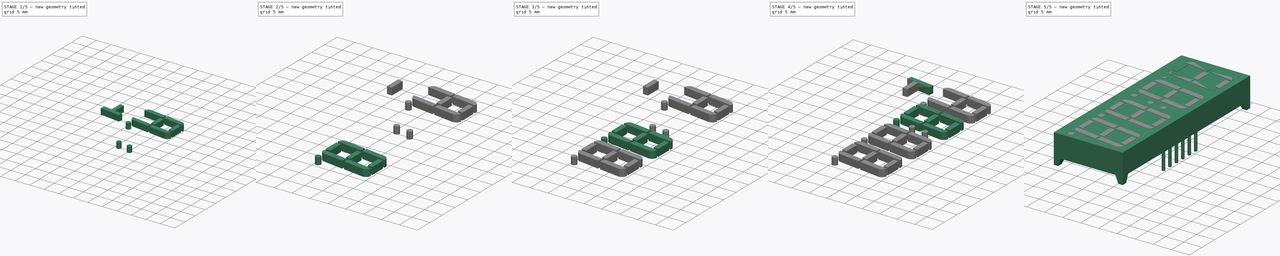
[diagram: build sequence overview — one tinted view per stage of 5, left to right]
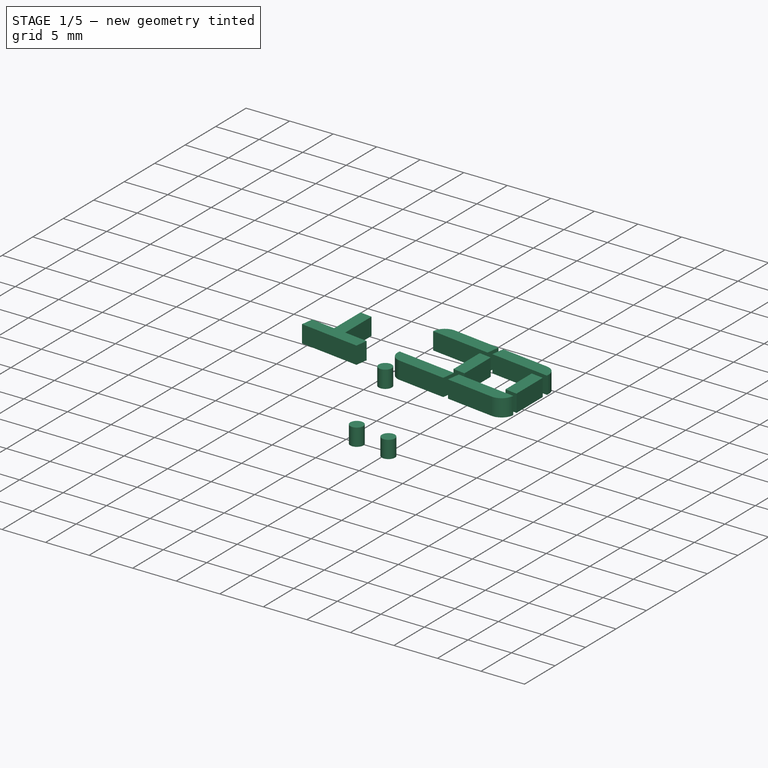
[diagram: stage 1 of 5 — iso view after this stage's code; geometry added in this stage tinted green]
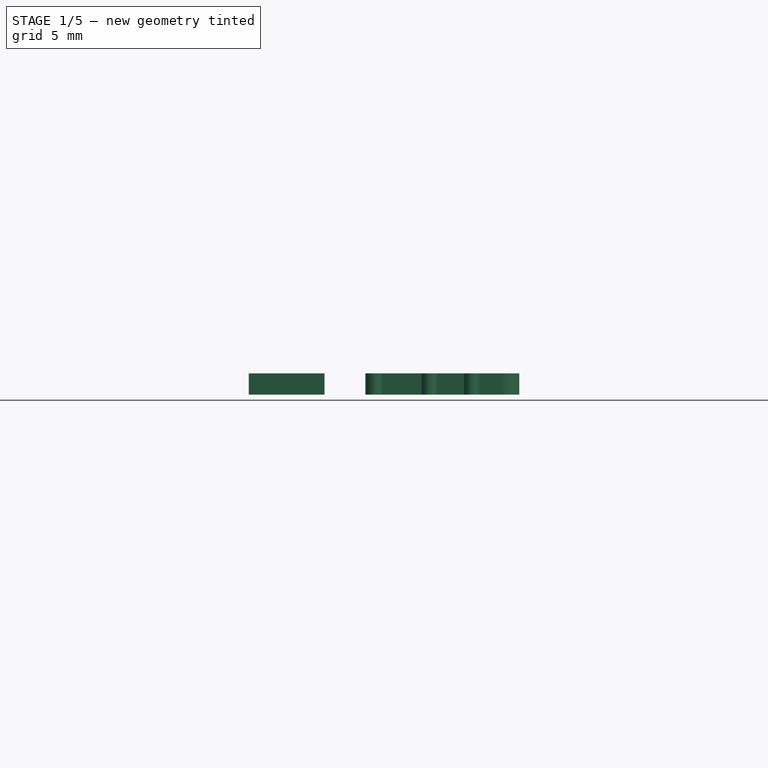
[diagram: stage 1 of 5 — front view after this stage's code; geometry added in this stage tinted green]
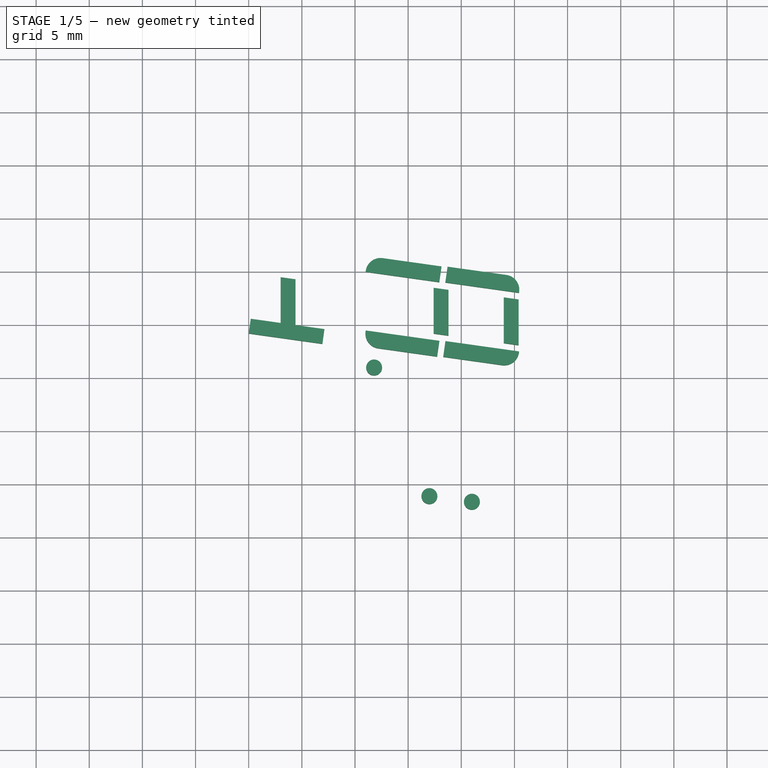
[diagram: stage 1 of 5 — top view after this stage's code; geometry added in this stage tinted green]
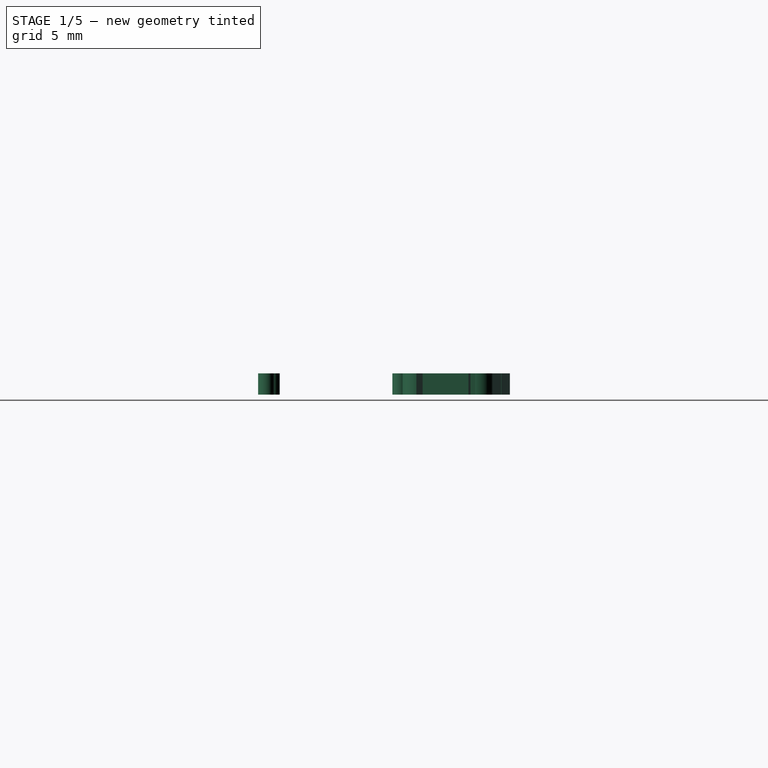
[diagram: stage 1 of 5 — right view after this stage's code; geometry added in this stage tinted green]
FCSTD DOCUMENT  (FreeCAD 0.17R11223 (Git))
Label: CA56-12XXXX_7
License: All rights reserved
LicenseURL: http://en.wikipedia.org/wiki/All_rights_reserved
objects: Part::Box×54, Part::Cut×26, Part::Cylinder×18, Part::Fillet×16, Part::Chamfer×4, Part::MultiFuse×4, App::DocumentObjectGroup×2, Sketcher::SketchObject×1, PartDesign::Pad×1, PartDesign::Body×1
note: 126 computed .brp shape members not serialized (recipe doc carries the construction recipe); baked Part::Feature solids carry a one-line shape summary decoded from their .brp

FEATURE [Part::Box] Box041  label="Kub041"
  AttacherType = Attacher::AttachEngine3D
  Height = 2
  Length = 7
  Placement = pos=(-0.2,8,6.2) rot=(0,0,-1;0.139626rad)
  Width = 1.5
FEATURE [Part::Box] Box042  label="Kub042"
  AttacherType = Attacher::AttachEngine3D
  Height = 2
  Length = 7
  Placement = pos=(8.8,7,6.2) rot=(0,0,-1;0.139626rad)
  Width = 1.5
FEATURE [Part::Box] Box043  label="Kub043"
  AttacherType = Attacher::AttachEngine3D
  Height = 2
  Length = 7
  Placement = pos=(9,14,6.2) rot=(0,0,-1;0.139626rad)
  Width = 1.5
FEATURE [Part::Box] Box044  label="Kub044"
  AttacherType = Attacher::AttachEngine3D
  Height = 2
  Length = 7
  Placement = pos=(0,15,6.2) rot=(0,0,-1;0.139626rad)
  Width = 1.5
FEATURE [Part::Box] Box045  label="Kub045"
  AttacherType = Attacher::AttachEngine3D
  Height = 2
  Length = 1.4
  Placement = pos=(-7,10,6.2) rot=(0,0,1;0rad)
  Width = 4.5
FEATURE [Part::Box] Box046  label="Kub046"
  AttacherType = Attacher::AttachEngine3D
  Height = 2
  Length = 7
  Placement = pos=(-9,14.78,6.2) rot=(0,0,-1;0.139626rad)
  Width = 1.4
FEATURE [Part::Box] Box047  label="Kub047"
  AttacherType = Attacher::AttachEngine3D
  Height = 2
  Length = 7
  Placement = pos=(-10,9.2,6.2) rot=(0,0,-1;0.139626rad)
  Width = 1.4
FEATURE [Part::Cut] Cut020
  Base = -> Box045
  Tool = -> Box046
FEATURE [Part::Box] Box048  label="Kub048"
  AttacherType = Attacher::AttachEngine3D
  Height = 2
  Length = 1.4
  Placement = pos=(-7,10,6.2) rot=(0,0,1;0rad)
  Width = 4.5
FEATURE [Part::Box] Box049  label="Kub049"
  AttacherType = Attacher::AttachEngine3D
  Height = 2
  Length = 7
  Placement = pos=(-9,14.78,6.2) rot=(0,0,-1;0.139626rad)
  Width = 1.4
FEATURE [Part::Box] Box050  label="Kub050"
  AttacherType = Attacher::AttachEngine3D
  Height = 2
  Length = 7
  Placement = pos=(-10,9.2,6.2) rot=(0,0,-1;0.139626rad)
  Width = 1.4
FEATURE [Part::Cut] Cut022
  Base = -> Box048
  Tool = -> Box049
FEATURE [Part::Cut] Cut023
  Base = -> Cut022
  Placement = pos=(14.4,-1,0) rot=(0,0,1;0rad)
  Tool = -> Box050
FEATURE [Part::Box] Box051  label="Kub051"
  AttacherType = Attacher::AttachEngine3D
  Height = 2
  Length = 1.4
  Placement = pos=(-7,10,6.2) rot=(0,0,1;0rad)
  Width = 4.5
FEATURE [Part::Box] Box052  label="Kub052"
  AttacherType = Attacher::AttachEngine3D
  Height = 2
  Length = 7
  Placement = pos=(-9,14.78,6.2) rot=(0,0,-1;0.139626rad)
  Width = 1.4
FEATURE [Part::Box] Box053  label="Kub053"
  AttacherType = Attacher::AttachEngine3D
  Height = 2
  Length = 7
  Placement = pos=(-10,9.2,6.2) rot=(0,0,-1;0.139626rad)
  Width = 1.4
FEATURE [Part::Cut] Cut024
  Base = -> Box051
  Tool = -> Box052
FEATURE [Part::Cut] Cut025
  Base = -> Cut024
  Placement = pos=(21,-1.9,0) rot=(0,0,1;0rad)
  Tool = -> Box053
FEATURE [Part::Fillet] Fillet012
  Base = -> Box041
  Edges = 1 edges r=1.4: [Edge1]
  Placement = pos=(1,0,0) rot=(0,0,1;0rad)
FEATURE [Part::Fillet] Fillet013
  Base = -> Box044
  Edges = 1 edges r=1.4: [Edge3]
  Placement = pos=(1,0,0) rot=(0,0,1;0rad)
FEATURE [Part::Fillet] Fillet014
  Base = -> Box043
  Edges = 1 edges r=1.4: [Edge7]
  Placement = pos=(-0.5,0,0) rot=(0,0,1;0rad)
FEATURE [Part::Fillet] Fillet015
  Base = -> Box042
  Edges = 1 edges r=1.4: [Edge5]
  Placement = pos=(-0.5,0,0) rot=(0,0,1;0rad)
FEATURE [Part::Cylinder] Cylinder003
  Angle = 360
  AttacherType = Attacher::AttachEngine3D
  Height = 2
  Placement = pos=(1.8,6,6.2) rot=(0,0,1;0rad)
  Radius = 0.75
FEATURE [Part::Cylinder] Cylinder004  label="DP6"
  Angle = 360
  AttacherType = Attacher::AttachEngine3D
  Height = 2
  Placement = pos=(7,-6.1,6.2) rot=(0,0,1;0rad)
  Radius = 0.75
FEATURE [Part::Cylinder] Cylinder005  label="DP5"
  Angle = 360
  AttacherType = Attacher::AttachEngine3D
  Height = 2
  Placement = pos=(11,-6.63,6.2) rot=(0,0,1;0rad)
  Radius = 0.75
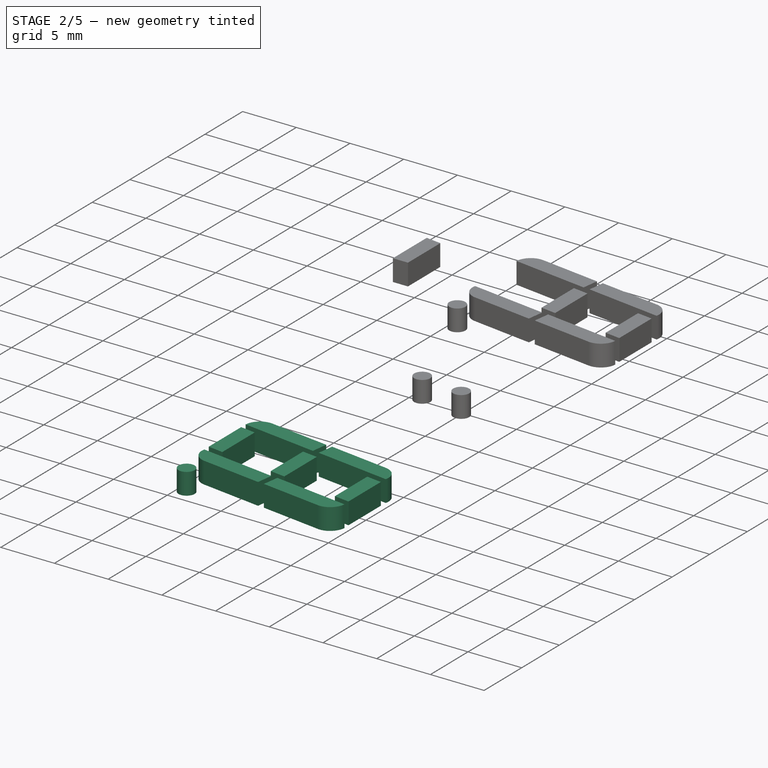
[diagram: stage 2 of 5 — iso view after this stage's code; geometry added in this stage tinted green]
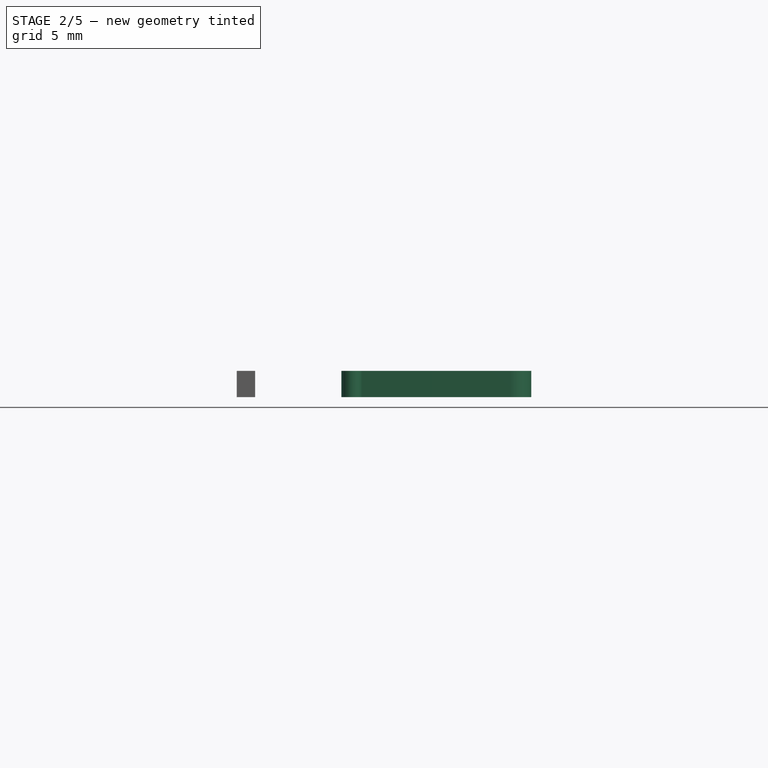
[diagram: stage 2 of 5 — front view after this stage's code; geometry added in this stage tinted green]
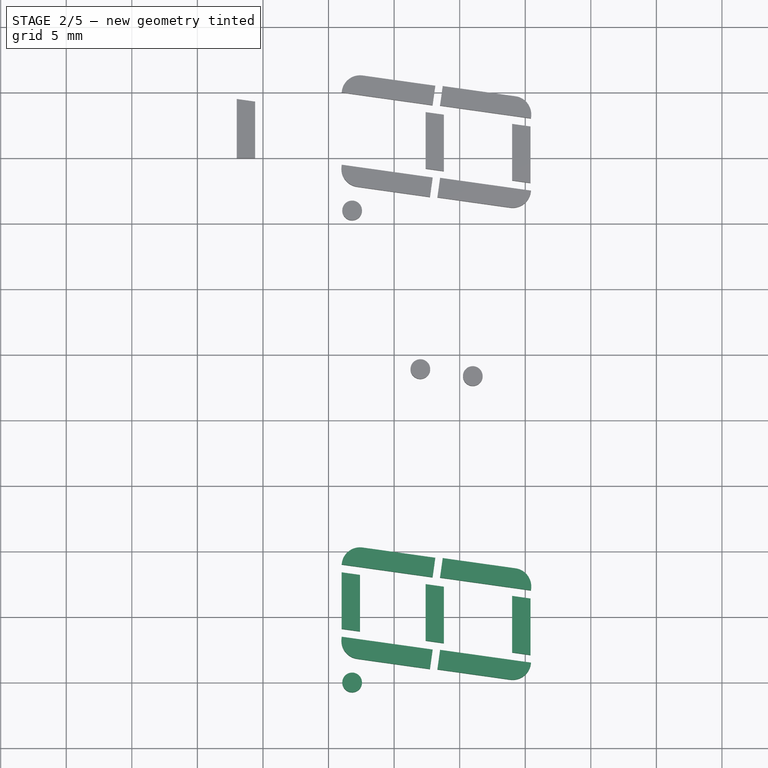
[diagram: stage 2 of 5 — top view after this stage's code; geometry added in this stage tinted green]
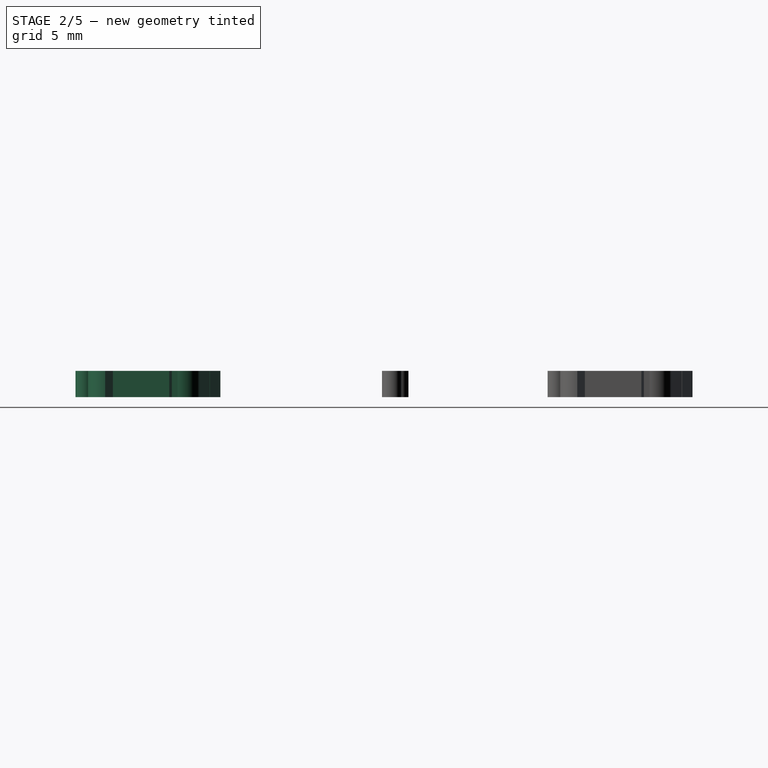
[diagram: stage 2 of 5 — right view after this stage's code; geometry added in this stage tinted green]
FEATURE [Part::Box] Box028  label="Kub028"
  AttacherType = Attacher::AttachEngine3D
  Height = 2
  Length = 7
  Placement = pos=(-0.2,8,6.2) rot=(0,0,-1;0.139626rad)
  Width = 1.5
FEATURE [Part::Box] Box029  label="Kub029"
  AttacherType = Attacher::AttachEngine3D
  Height = 2
  Length = 7
  Placement = pos=(8.8,7,6.2) rot=(0,0,-1;0.139626rad)
  Width = 1.5
FEATURE [Part::Box] Box030  label="Kub030"
  AttacherType = Attacher::AttachEngine3D
  Height = 2
  Length = 7
  Placement = pos=(9,14,6.2) rot=(0,0,-1;0.139626rad)
  Width = 1.5
FEATURE [Part::Box] Box031  label="Kub031"
  AttacherType = Attacher::AttachEngine3D
  Height = 2
  Length = 7
  Placement = pos=(0,15,6.2) rot=(0,0,-1;0.139626rad)
  Width = 1.5
FEATURE [Part::Box] Box032  label="Kub032"
  AttacherType = Attacher::AttachEngine3D
  Height = 2
  Length = 1.4
  Placement = pos=(-7,10,6.2) rot=(0,0,1;0rad)
  Width = 4.5
FEATURE [Part::Box] Box033  label="Kub033"
  AttacherType = Attacher::AttachEngine3D
  Height = 2
  Length = 7
  Placement = pos=(-9,14.78,6.2) rot=(0,0,-1;0.139626rad)
  Width = 1.4
FEATURE [Part::Cut] Cut014
  Base = -> Box032
  Tool = -> Box033
FEATURE [Part::Box] Box035  label="Kub035"
  AttacherType = Attacher::AttachEngine3D
  Height = 2
  Length = 1.4
  Placement = pos=(-7,10,6.2) rot=(0,0,1;0rad)
  Width = 4.5
FEATURE [Part::Box] Box036  label="Kub036"
  AttacherType = Attacher::AttachEngine3D
  Height = 2
  Length = 7
  Placement = pos=(-9,14.78,6.2) rot=(0,0,-1;0.139626rad)
  Width = 1.4
FEATURE [Part::Box] Box037  label="Kub037"
  AttacherType = Attacher::AttachEngine3D
  Height = 2
  Length = 7
  Placement = pos=(-10,9.2,6.2) rot=(0,0,-1;0.139626rad)
  Width = 1.4
FEATURE [Part::Cut] Cut016
  Base = -> Box035
  Tool = -> Box036
FEATURE [Part::Cut] Cut017
  Base = -> Cut016
  Placement = pos=(14.4,-1,0) rot=(0,0,1;0rad)
  Tool = -> Box037
FEATURE [Part::Box] Box038  label="Kub038"
  AttacherType = Attacher::AttachEngine3D
  Height = 2
  Length = 1.4
  Placement = pos=(-7,10,6.2) rot=(0,0,1;0rad)
  Width = 4.5
FEATURE [Part::Box] Box039  label="Kub039"
  AttacherType = Attacher::AttachEngine3D
  Height = 2
  Length = 7
  Placement = pos=(-9,14.78,6.2) rot=(0,0,-1;0.139626rad)
  Width = 1.4
FEATURE [Part::Box] Box040  label="Kub040"
  AttacherType = Attacher::AttachEngine3D
  Height = 2
  Length = 7
  Placement = pos=(-10,9.2,6.2) rot=(0,0,-1;0.139626rad)
  Width = 1.4
FEATURE [Part::Cut] Cut018
  Base = -> Box038
  Tool = -> Box039
FEATURE [Part::Cut] Cut019
  Base = -> Cut018
  Placement = pos=(21,-1.9,0) rot=(0,0,1;0rad)
  Tool = -> Box040
FEATURE [Part::Fillet] Fillet008
  Base = -> Box028
  Edges = 1 edges r=1.4: [Edge1]
  Placement = pos=(1,0,0) rot=(0,0,1;0rad)
FEATURE [Part::Fillet] Fillet009
  Base = -> Box031
  Edges = 1 edges r=1.4: [Edge3]
  Placement = pos=(1,0,0) rot=(0,0,1;0rad)
FEATURE [Part::Fillet] Fillet010
  Base = -> Box030
  Edges = 1 edges r=1.4: [Edge7]
  Placement = pos=(-0.5,0,0) rot=(0,0,1;0rad)
FEATURE [Part::Fillet] Fillet011
  Base = -> Box029
  Edges = 1 edges r=1.4: [Edge5]
  Placement = pos=(-0.5,0,0) rot=(0,0,1;0rad)
FEATURE [Part::Cylinder] Cylinder002
  Angle = 360
  AttacherType = Attacher::AttachEngine3D
  Height = 2
  Placement = pos=(1.8,6,6.2) rot=(0,0,1;0rad)
  Radius = 0.75
FEATURE [Part::Cut] Cut021
  Base = -> Cut020
  Placement = pos=(8,-0.1,0) rot=(0,0,1;0rad)
  Tool = -> Box047
FEATURE [Part::MultiFuse] Fusion003  label="Digit 004"
  Placement = pos=(0,-36,0) rot=(0,0,1;0rad)
  Shapes = -> [Cut021,Fillet015,Fillet012,Fillet014,Cylinder003,Cut025,Fillet013,Cut023]
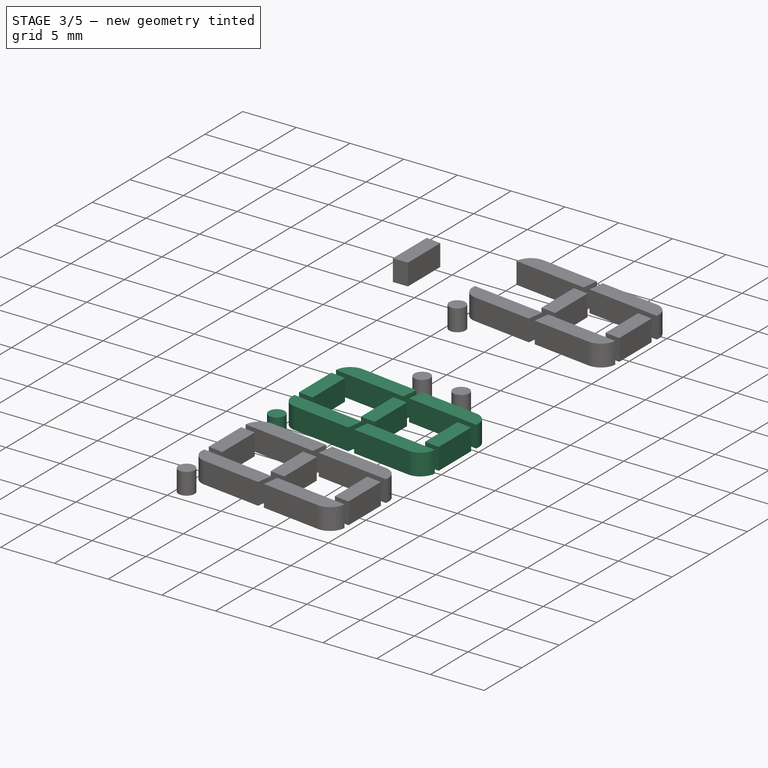
[diagram: stage 3 of 5 — iso view after this stage's code; geometry added in this stage tinted green]
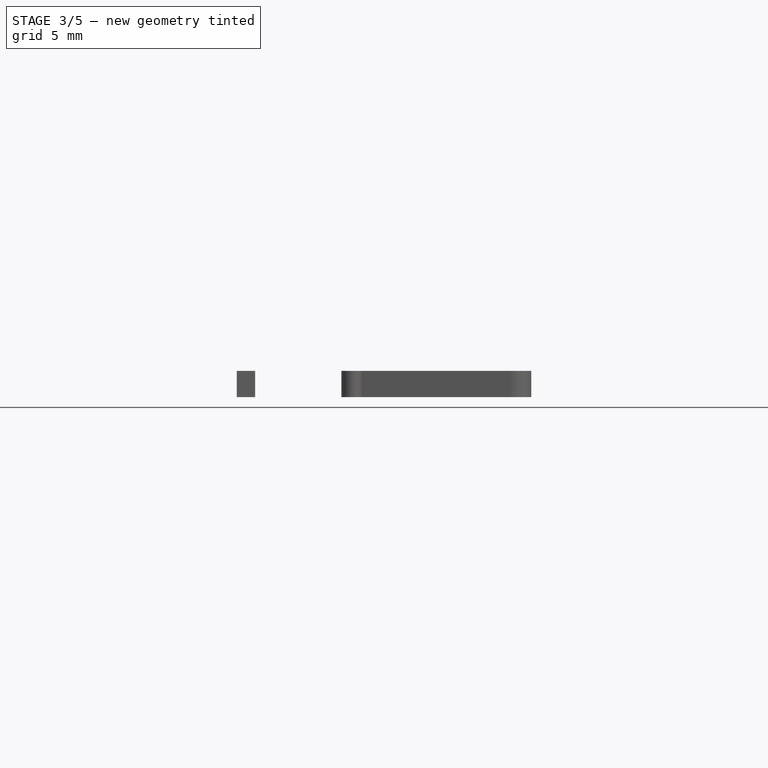
[diagram: stage 3 of 5 — front view after this stage's code; geometry added in this stage tinted green]
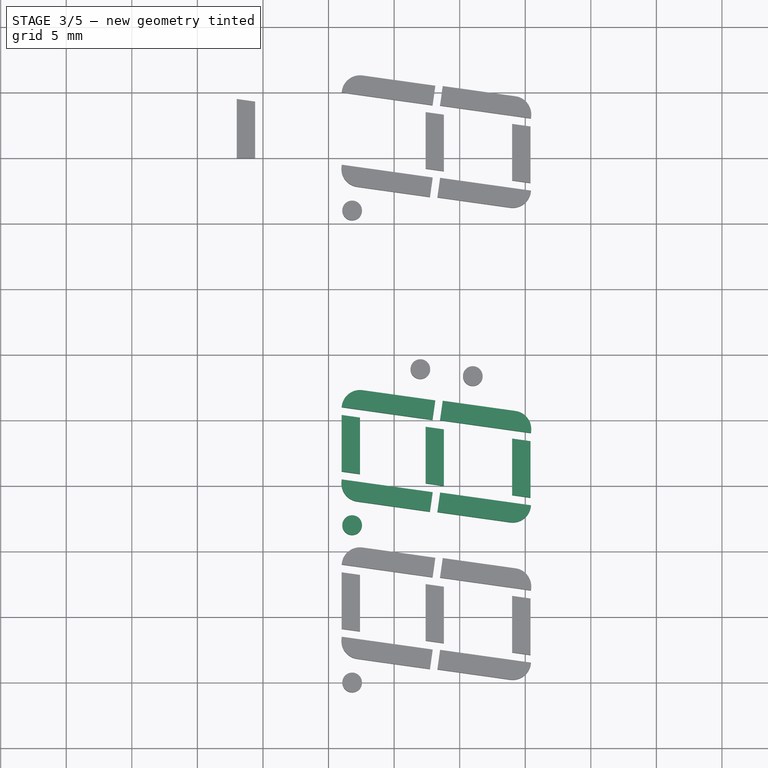
[diagram: stage 3 of 5 — top view after this stage's code; geometry added in this stage tinted green]
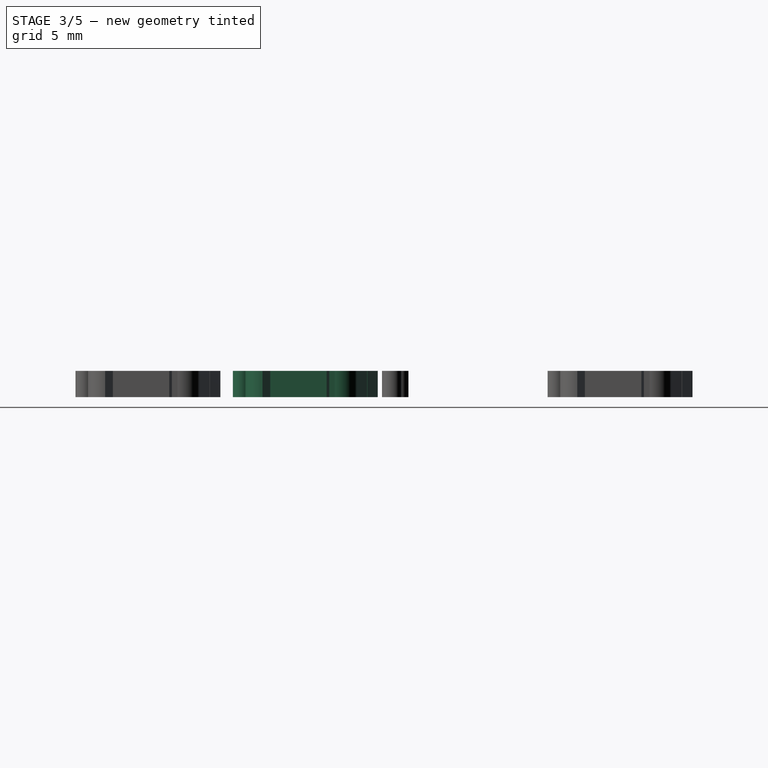
[diagram: stage 3 of 5 — right view after this stage's code; geometry added in this stage tinted green]
FEATURE [Part::Box] Box015  label="Kub015"
  AttacherType = Attacher::AttachEngine3D
  Height = 2
  Length = 7
  Placement = pos=(-0.2,8,6.2) rot=(0,0,-1;0.139626rad)
  Width = 1.5
FEATURE [Part::Box] Box016  label="Kub016"
  AttacherType = Attacher::AttachEngine3D
  Height = 2
  Length = 7
  Placement = pos=(8.8,7,6.2) rot=(0,0,-1;0.139626rad)
  Width = 1.5
FEATURE [Part::Box] Box017  label="Kub017"
  AttacherType = Attacher::AttachEngine3D
  Height = 2
  Length = 7
  Placement = pos=(9,14,6.2) rot=(0,0,-1;0.139626rad)
  Width = 1.5
FEATURE [Part::Box] Box018  label="Kub018"
  AttacherType = Attacher::AttachEngine3D
  Height = 2
  Length = 7
  Placement = pos=(0,15,6.2) rot=(0,0,-1;0.139626rad)
  Width = 1.5
FEATURE [Part::Box] Box019  label="Kub019"
  AttacherType = Attacher::AttachEngine3D
  Height = 2
  Length = 1.4
  Placement = pos=(-7,10,6.2) rot=(0,0,1;0rad)
  Width = 4.5
FEATURE [Part::Box] Box020  label="Kub020"
  AttacherType = Attacher::AttachEngine3D
  Height = 2
  Length = 7
  Placement = pos=(-9,14.78,6.2) rot=(0,0,-1;0.139626rad)
  Width = 1.4
FEATURE [Part::Cut] Cut008
  Base = -> Box019
  Tool = -> Box020
FEATURE [Part::Box] Box022  label="Kub022"
  AttacherType = Attacher::AttachEngine3D
  Height = 2
  Length = 1.4
  Placement = pos=(-7,10,6.2) rot=(0,0,1;0rad)
  Width = 4.5
FEATURE [Part::Box] Box023  label="Kub023"
  AttacherType = Attacher::AttachEngine3D
  Height = 2
  Length = 7
  Placement = pos=(-9,14.78,6.2) rot=(0,0,-1;0.139626rad)
  Width = 1.4
FEATURE [Part::Box] Box024  label="Kub024"
  AttacherType = Attacher::AttachEngine3D
  Height = 2
  Length = 7
  Placement = pos=(-10,9.2,6.2) rot=(0,0,-1;0.139626rad)
  Width = 1.4
FEATURE [Part::Cut] Cut010
  Base = -> Box022
  Tool = -> Box023
FEATURE [Part::Cut] Cut011
  Base = -> Cut010
  Placement = pos=(14.4,-1,0) rot=(0,0,1;0rad)
  Tool = -> Box024
FEATURE [Part::Box] Box025  label="Kub025"
  AttacherType = Attacher::AttachEngine3D
  Height = 2
  Length = 1.4
  Placement = pos=(-7,10,6.2) rot=(0,0,1;0rad)
  Width = 4.5
FEATURE [Part::Box] Box026  label="Kub026"
  AttacherType = Attacher::AttachEngine3D
  Height = 2
  Length = 7
  Placement = pos=(-9,14.78,6.2) rot=(0,0,-1;0.139626rad)
  Width = 1.4
FEATURE [Part::Box] Box027  label="Kub027"
  AttacherType = Attacher::AttachEngine3D
  Height = 2
  Length = 7
  Placement = pos=(-10,9.2,6.2) rot=(0,0,-1;0.139626rad)
  Width = 1.4
FEATURE [Part::Cut] Cut012
  Base = -> Box025
  Tool = -> Box026
FEATURE [Part::Cut] Cut013
  Base = -> Cut012
  Placement = pos=(21,-1.9,0) rot=(0,0,1;0rad)
  Tool = -> Box027
FEATURE [Part::Fillet] Fillet004
  Base = -> Box015
  Edges = 1 edges r=1.4: [Edge1]
  Placement = pos=(1,0,0) rot=(0,0,1;0rad)
FEATURE [Part::Fillet] Fillet005
  Base = -> Box018
  Edges = 1 edges r=1.4: [Edge3]
  Placement = pos=(1,0,0) rot=(0,0,1;0rad)
FEATURE [Part::Fillet] Fillet006
  Base = -> Box017
  Edges = 1 edges r=1.4: [Edge7]
  Placement = pos=(-0.5,0,0) rot=(0,0,1;0rad)
FEATURE [Part::Fillet] Fillet007
  Base = -> Box016
  Edges = 1 edges r=1.4: [Edge5]
  Placement = pos=(-0.5,0,0) rot=(0,0,1;0rad)
FEATURE [Part::Cylinder] Cylinder001
  Angle = 360
  AttacherType = Attacher::AttachEngine3D
  Height = 2
  Placement = pos=(1.8,6,6.2) rot=(0,0,1;0rad)
  Radius = 0.75
FEATURE [Part::Box] Box034  label="Kub034"
  AttacherType = Attacher::AttachEngine3D
  Height = 2
  Length = 7
  Placement = pos=(-10,9.2,6.2) rot=(0,0,-1;0.139626rad)
  Width = 1.4
FEATURE [Part::Cut] Cut015
  Base = -> Cut014
  Placement = pos=(8,-0.1,0) rot=(0,0,1;0rad)
  Tool = -> Box034
FEATURE [Part::MultiFuse] Fusion002  label="Digit 003"
  Placement = pos=(0,-24,0) rot=(0,0,1;0rad)
  Shapes = -> [Cut015,Fillet011,Fillet008,Fillet010,Cylinder002,Cut019,Fillet009,Cut017]
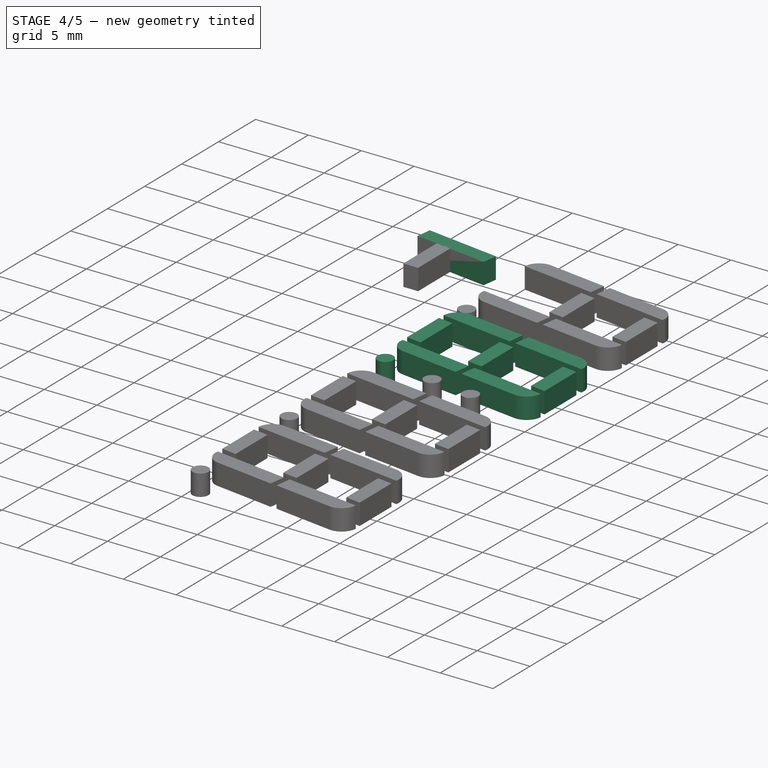
[diagram: stage 4 of 5 — iso view after this stage's code; geometry added in this stage tinted green]
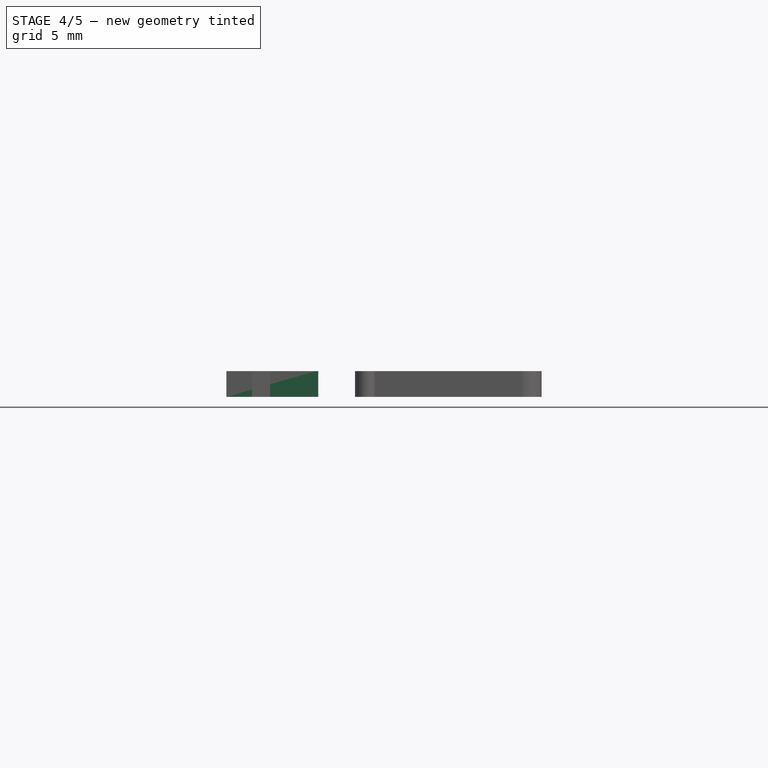
[diagram: stage 4 of 5 — front view after this stage's code; geometry added in this stage tinted green]
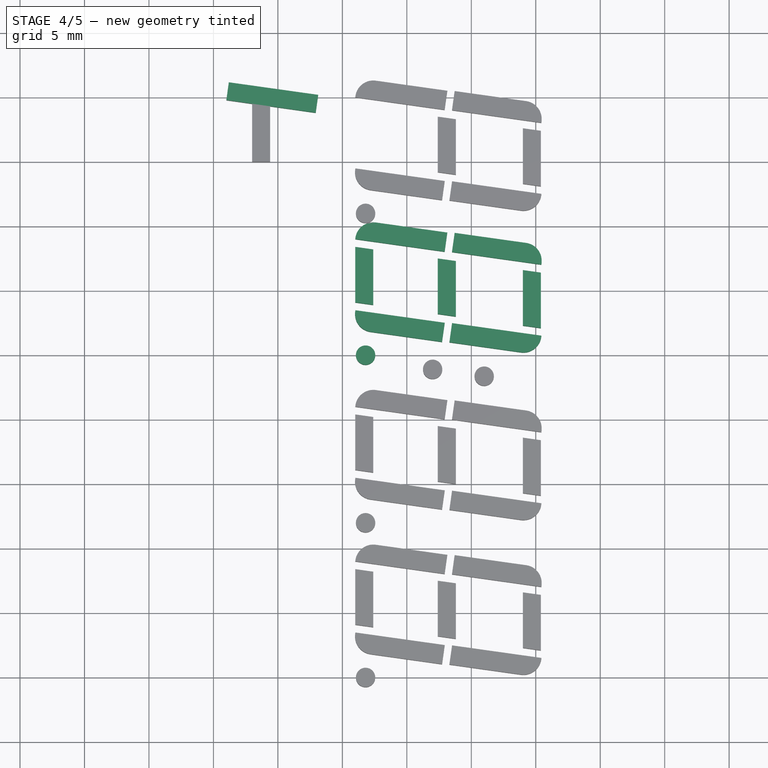
[diagram: stage 4 of 5 — top view after this stage's code; geometry added in this stage tinted green]
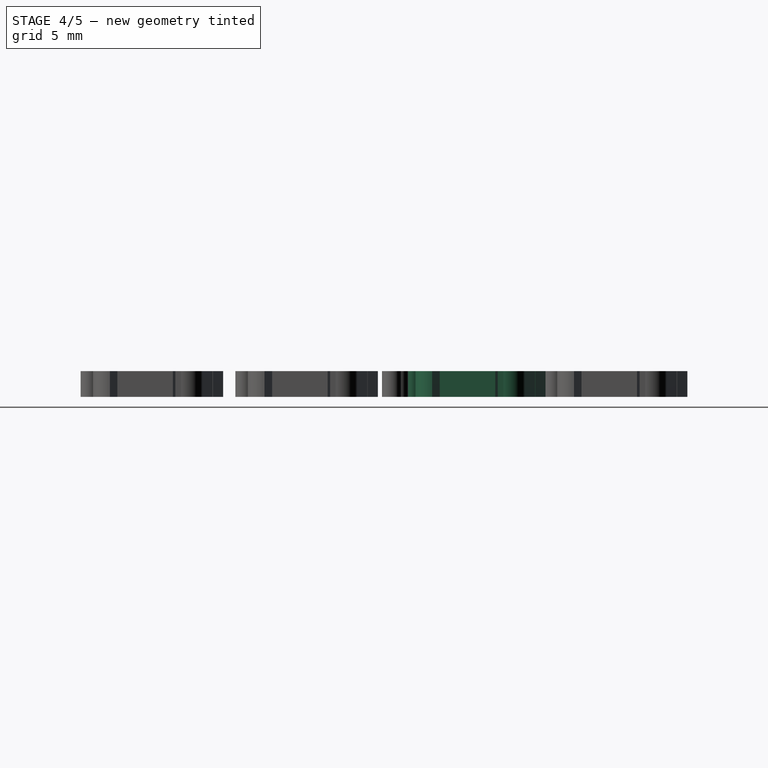
[diagram: stage 4 of 5 — right view after this stage's code; geometry added in this stage tinted green]
FEATURE [Part::Box] Box002  label="Kub002"
  AttacherType = Attacher::AttachEngine3D
  Height = 2
  Length = 7
  Placement = pos=(-0.2,8,6.2) rot=(0,0,-1;0.139626rad)
  Width = 1.5
FEATURE [Part::Box] Box003  label="Kub003"
  AttacherType = Attacher::AttachEngine3D
  Height = 2
  Length = 7
  Placement = pos=(8.8,7,6.2) rot=(0,0,-1;0.139626rad)
  Width = 1.5
FEATURE [Part::Box] Box004  label="Kub004"
  AttacherType = Attacher::AttachEngine3D
  Height = 2
  Length = 7
  Placement = pos=(9,14,6.2) rot=(0,0,-1;0.139626rad)
  Width = 1.5
FEATURE [Part::Box] Box005  label="Kub005"
  AttacherType = Attacher::AttachEngine3D
  Height = 2
  Length = 7
  Placement = pos=(0,15,6.2) rot=(0,0,-1;0.139626rad)
  Width = 1.5
FEATURE [Part::Box] Box006  label="Kub006"
  AttacherType = Attacher::AttachEngine3D
  Height = 2
  Length = 1.4
  Placement = pos=(-7,10,6.2) rot=(0,0,1;0rad)
  Width = 4.5
FEATURE [Part::Box] Box007  label="Kub007"
  AttacherType = Attacher::AttachEngine3D
  Height = 2
  Length = 7
  Placement = pos=(-9,14.78,6.2) rot=(0,0,-1;0.139626rad)
  Width = 1.4
FEATURE [Part::Box] Box009  label="Kub009"
  AttacherType = Attacher::AttachEngine3D
  Height = 2
  Length = 1.4
  Placement = pos=(-7,10,6.2) rot=(0,0,1;0rad)
  Width = 4.5
FEATURE [Part::Box] Box010  label="Kub010"
  AttacherType = Attacher::AttachEngine3D
  Height = 2
  Length = 7
  Placement = pos=(-9,14.78,6.2) rot=(0,0,-1;0.139626rad)
  Width = 1.4
FEATURE [Part::Box] Box011  label="Kub011"
  AttacherType = Attacher::AttachEngine3D
  Height = 2
  Length = 7
  Placement = pos=(-10,9.2,6.2) rot=(0,0,-1;0.139626rad)
  Width = 1.4
FEATURE [Part::Cut] Cut004
  Base = -> Box009
  Tool = -> Box010
FEATURE [Part::Cut] Cut005
  Base = -> Cut004
  Placement = pos=(14.4,-1,0) rot=(0,0,1;0rad)
  Tool = -> Box011
FEATURE [Part::Box] Box012  label="Kub012"
  AttacherType = Attacher::AttachEngine3D
  Height = 2
  Length = 1.4
  Placement = pos=(-7,10,6.2) rot=(0,0,1;0rad)
  Width = 4.5
FEATURE [Part::Box] Box013  label="Kub013"
  AttacherType = Attacher::AttachEngine3D
  Height = 2
  Length = 7
  Placement = pos=(-9,14.78,6.2) rot=(0,0,-1;0.139626rad)
  Width = 1.4
FEATURE [Part::Box] Box014  label="Kub014"
  AttacherType = Attacher::AttachEngine3D
  Height = 2
  Length = 7
  Placement = pos=(-10,9.2,6.2) rot=(0,0,-1;0.139626rad)
  Width = 1.4
FEATURE [Part::Cut] Cut006
  Base = -> Box012
  Tool = -> Box013
FEATURE [Part::Cut] Cut007
  Base = -> Cut006
  Placement = pos=(21,-1.9,0) rot=(0,0,1;0rad)
  Tool = -> Box014
FEATURE [Part::Fillet] Fillet
  Base = -> Box002
  Edges = 1 edges r=1.4: [Edge1]
  Placement = pos=(1,0,0) rot=(0,0,1;0rad)
FEATURE [Part::Fillet] Fillet001
  Base = -> Box005
  Edges = 1 edges r=1.4: [Edge3]
  Placement = pos=(1,0,0) rot=(0,0,1;0rad)
FEATURE [Part::Fillet] Fillet002
  Base = -> Box004
  Edges = 1 edges r=1.4: [Edge7]
  Placement = pos=(-0.5,0,0) rot=(0,0,1;0rad)
FEATURE [Part::Fillet] Fillet003
  Base = -> Box003
  Edges = 1 edges r=1.4: [Edge5]
  Placement = pos=(-0.5,0,0) rot=(0,0,1;0rad)
FEATURE [Part::Cylinder] Cylinder
  Angle = 360
  AttacherType = Attacher::AttachEngine3D
  Height = 2
  Placement = pos=(1.8,6,6.2) rot=(0,0,1;0rad)
  Radius = 0.75
FEATURE [Part::Box] Box021  label="Kub021"
  AttacherType = Attacher::AttachEngine3D
  Height = 2
  Length = 7
  Placement = pos=(-10,9.2,6.2) rot=(0,0,-1;0.139626rad)
  Width = 1.4
FEATURE [Part::Cut] Cut009
  Base = -> Cut008
  Placement = pos=(8,-0.1,0) rot=(0,0,1;0rad)
  Tool = -> Box021
FEATURE [Part::MultiFuse] Fusion001  label="Digit 002"
  Placement = pos=(0,-11,0) rot=(0,0,1;0rad)
  Shapes = -> [Cut009,Fillet007,Fillet004,Fillet006,Cylinder001,Cut013,Fillet005,Cut011]
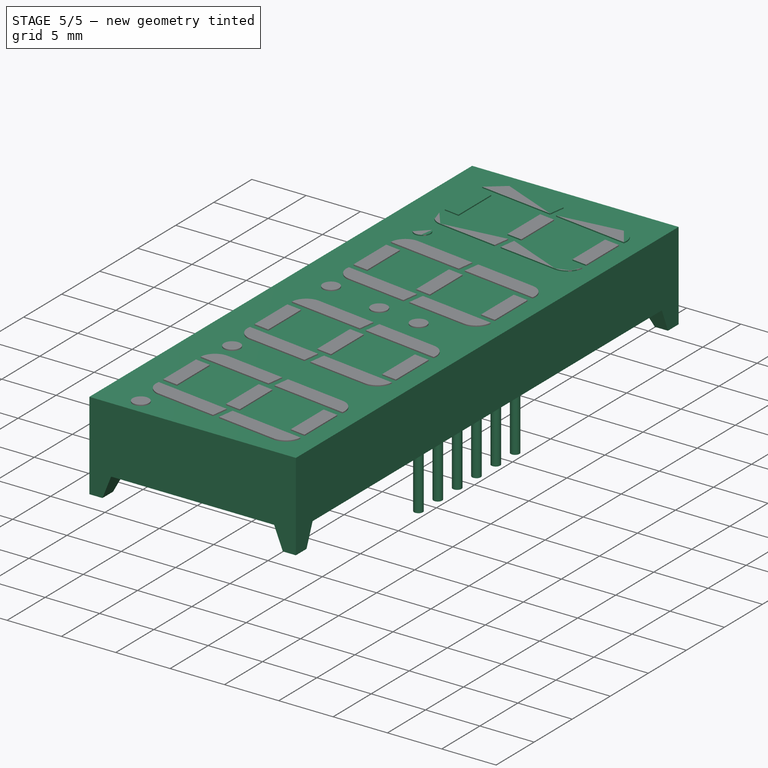
[diagram: stage 5 of 5 — iso view after this stage's code; geometry added in this stage tinted green]
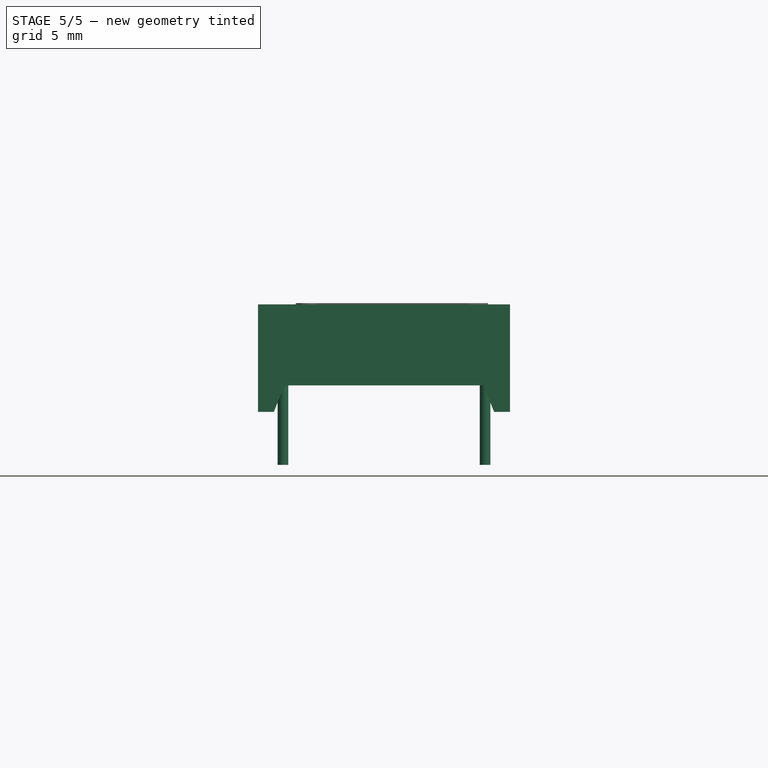
[diagram: stage 5 of 5 — front view after this stage's code; geometry added in this stage tinted green]
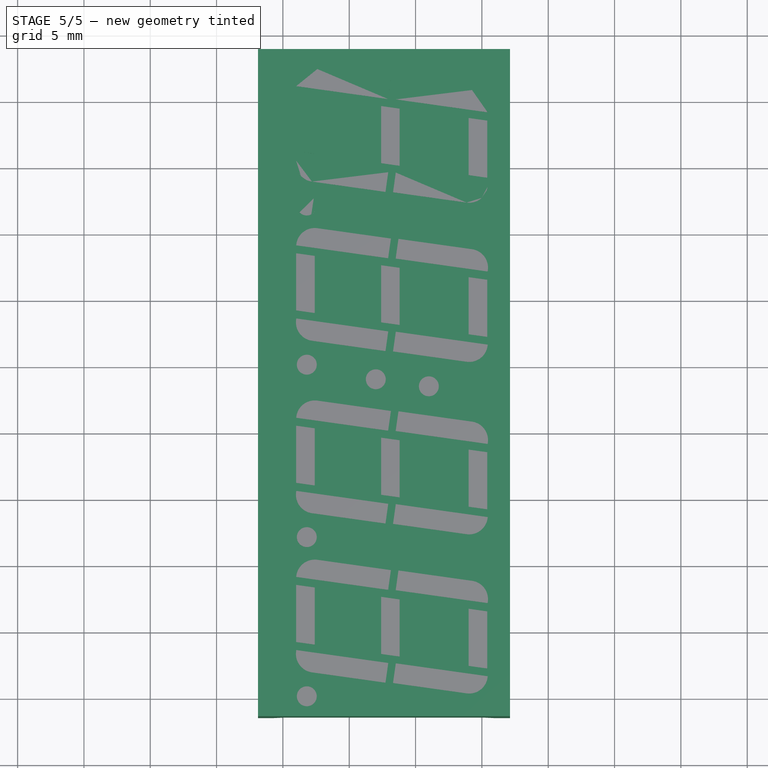
[diagram: stage 5 of 5 — top view after this stage's code; geometry added in this stage tinted green]
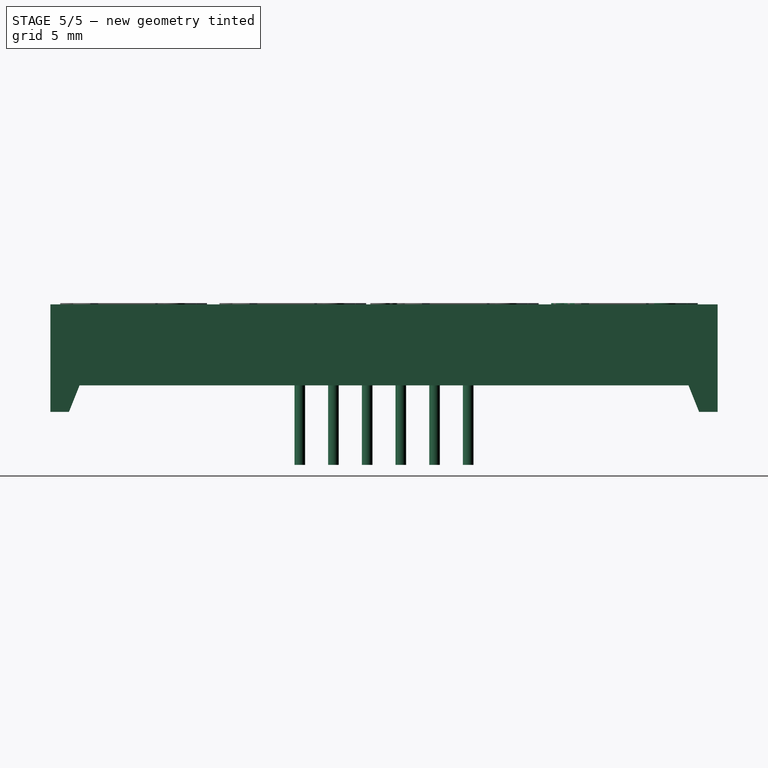
[diagram: stage 5 of 5 — right view after this stage's code; geometry added in this stage tinted green]
FEATURE [Sketcher::SketchObject] Sketch
  MapMode = 5
  Support = -> [XY_Plane]
  sketch-geometry (4):
    g0: LineSegment StartX=-1.88 StartY=18.8 StartZ=0 EndX=17.12 EndY=18.8 EndZ=0
    g1: LineSegment StartX=17.12 StartY=18.8 StartZ=0 EndX=17.12 EndY=-31.5 EndZ=0
    g2: LineSegment StartX=17.12 StartY=-31.5 StartZ=0 EndX=-1.88 EndY=-31.5 EndZ=0
    g3: LineSegment StartX=-1.88 StartY=-31.5 StartZ=0 EndX=-1.88 EndY=18.8 EndZ=0
  constraints (12):
    c: Coincident(g0,g1)
    c: Coincident(g1,g2)
    c: Coincident(g2,g3)
    c: Coincident(g3,g0)
    c: Horizontal(g0)
    c: Horizontal(g2)
    c: Vertical(g1)
    c: Vertical(g3)
    c: DistanceX(g0,g0) = 19
    c: DistanceY(g2,g0) = 50.3
    c: DistanceY(g-1,g0) = 18.8
    c: DistanceX(g0,g-1) = 1.88
FEATURE [PartDesign::Pad] Pad
  Length = 8.1
  Length2 = 100
  Profile = -> Sketch
  Type = 0
FEATURE [PartDesign::Body] Body
  Group = -> [Sketch,Pad]
  Origin = -> BodyOrigin
  Tip = -> Pad
FEATURE [Part::Box] Box  label="Kub"
  AttacherType = Attacher::AttachEngine3D
  Height = 3
  Length = 17
  Placement = pos=(-0.88,-35,-1) rot=(0,0,1;0rad)
  Width = 60
FEATURE [Part::Chamfer] Chamfer
  Base = -> Box
  Edges = 1 edges: [Edge6 r1=2.5 r2=1]
FEATURE [Part::Chamfer] Chamfer001
  Base = -> Chamfer
  Edges = 1 edges: [Edge15 r1=1 r2=2.5]
FEATURE [Part::Cut] Cut
  Base = -> Pad
  Tool = -> Chamfer001
FEATURE [Part::Box] Box001  label="Kub001"
  AttacherType = Attacher::AttachEngine3D
  Height = 3
  Length = 23
  Placement = pos=(-4,-30.3,-1) rot=(0,0,1;0rad)
  Width = 47.9
FEATURE [Part::Chamfer] Chamfer002
  Base = -> Box001
  Edges = 1 edges: [Edge10 r1=2.5 r2=1]
FEATURE [Part::Chamfer] Chamfer003
  Base = -> Chamfer002
  Edges = 1 edges: [Edge13 r1=1 r2=2.5]
FEATURE [Part::Cut] Cut001  label="Base block"
  Base = -> Cut
  Tool = -> Chamfer003
FEATURE [Part::Box] Box008  label="Kub008"
  AttacherType = Attacher::AttachEngine3D
  Height = 2
  Length = 7
  Placement = pos=(-10,9.2,6.2) rot=(0,0,-1;0.139626rad)
  Width = 1.4
FEATURE [Part::Cut] Cut002
  Base = -> Box006
  Tool = -> Box007
FEATURE [Part::Cut] Cut003
  Base = -> Cut002
  Placement = pos=(8,-0.1,0) rot=(0,0,1;0rad)
  Tool = -> Box008
FEATURE [Part::MultiFuse] Fusion  label="Digit 001"
  Placement = pos=(0,1,0) rot=(0,0,1;0rad)
  Shapes = -> [Cut003,Fillet003,Fillet,Fillet002,Cylinder,Cut007,Fillet001,Cut005]
FEATURE [Part::Cylinder] Cylinder006  label="Pin 001"
  Angle = 360
  AttacherType = Attacher::AttachEngine3D
  Height = 6
  Placement = pos=(0,0,-4) rot=(0,0,1;0rad)
  Radius = 0.4
FEATURE [Part::Cylinder] Cylinder007  label="Pin 002"
  Angle = 360
  AttacherType = Attacher::AttachEngine3D
  Height = 6
  Placement = pos=(0,-2.54,-4) rot=(0,0,1;0rad)
  Radius = 0.4
FEATURE [Part::Cylinder] Cylinder008  label="Pin 003"
  Angle = 360
  AttacherType = Attacher::AttachEngine3D
  Height = 6
  Placement = pos=(0,-5.08,-4) rot=(0,0,1;0rad)
  Radius = 0.4
FEATURE [Part::Cylinder] Cylinder009  label="Pin 004"
  Angle = 360
  AttacherType = Attacher::AttachEngine3D
  Height = 6
  Placement = pos=(0,-7.62,-4) rot=(0,0,1;0rad)
  Radius = 0.4
FEATURE [Part::Cylinder] Cylinder010  label="Pin 005"
  Angle = 360
  AttacherType = Attacher::AttachEngine3D
  Height = 6
  Placement = pos=(0,-10.16,-4) rot=(0,0,1;0rad)
  Radius = 0.4
FEATURE [Part::Cylinder] Cylinder011  label="Pin 006"
  Angle = 360
  AttacherType = Attacher::AttachEngine3D
  Height = 6
  Placement = pos=(0,-12.7,-4) rot=(0,0,1;0rad)
  Radius = 0.4
FEATURE [Part::Cylinder] Cylinder012  label="Pin 007"
  Angle = 360
  AttacherType = Attacher::AttachEngine3D
  Height = 6
  Placement = pos=(15.24,-12.7,-4) rot=(0,0,1;0rad)
  Radius = 0.4
FEATURE [Part::Cylinder] Cylinder013  label="Pin 008"
  Angle = 360
  AttacherType = Attacher::AttachEngine3D
  Height = 6
  Placement = pos=(15.24,-10.16,-4) rot=(0,0,1;0rad)
  Radius = 0.4
FEATURE [Part::Cylinder] Cylinder014  label="Pin 009"
  Angle = 360
  AttacherType = Attacher::AttachEngine3D
  Height = 6
  Placement = pos=(15.24,-7.62,-4) rot=(0,0,1;0rad)
  Radius = 0.4
FEATURE [Part::Cylinder] Cylinder015  label="Pin 010"
  Angle = 360
  AttacherType = Attacher::AttachEngine3D
  Height = 6
  Placement = pos=(15.24,-5.08,-4) rot=(0,0,1;0rad)
  Radius = 0.4
FEATURE [Part::Cylinder] Cylinder016  label="Pin 011"
  Angle = 360
  AttacherType = Attacher::AttachEngine3D
  Height = 6
  Placement = pos=(15.24,-2.54,-4) rot=(0,0,1;0rad)
  Radius = 0.4
FEATURE [Part::Cylinder] Cylinder017  label="Pin 012"
  Angle = 360
  AttacherType = Attacher::AttachEngine3D
  Height = 6
  Placement = pos=(15.24,0,-4) rot=(0,0,1;0rad)
  Radius = 0.4
FEATURE [App::DocumentObjectGroup] Grupp  label="Pins"
  Group = -> [Cylinder006,Cylinder007,Cylinder008,Cylinder009,Cylinder010,Cylinder011,Cylinder012,Cylinder013,Cylinder014,Cylinder015,Cylinder016,Cylinder017]
FEATURE [App::DocumentObjectGroup] Grupp001  label="Digits"
  Group = -> [Fusion,Fusion001,Fusion002,Fusion003,Cylinder004,Cylinder005]
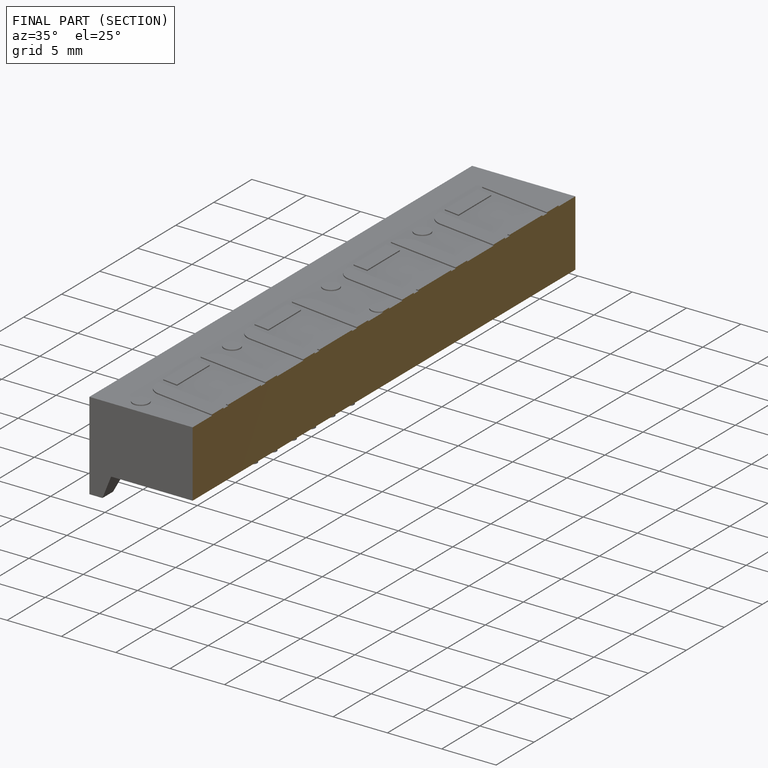
[diagram: finished part — half-section view (interior)]
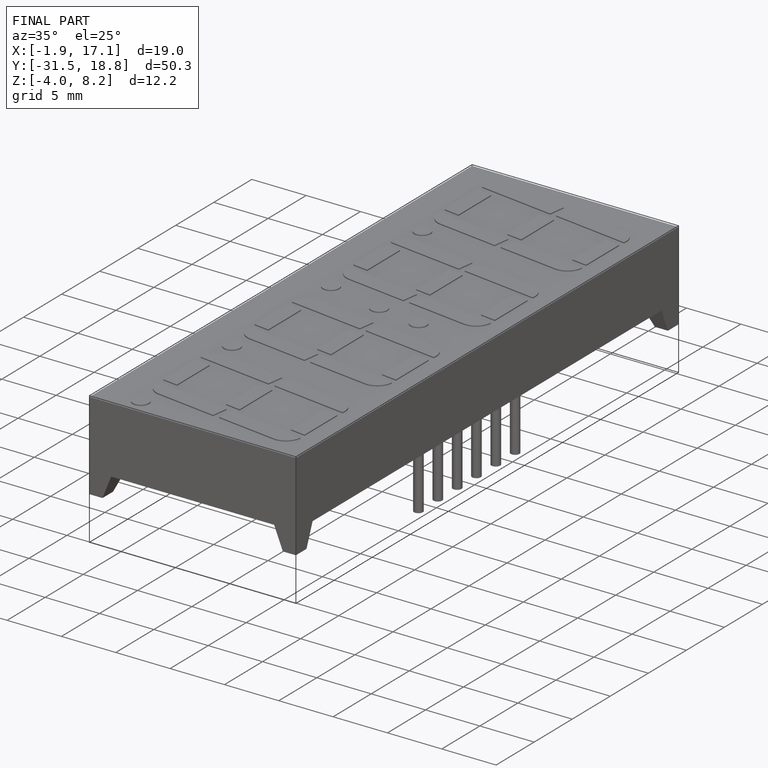
[diagram: finished part — iso view with bounding-box wireframe]
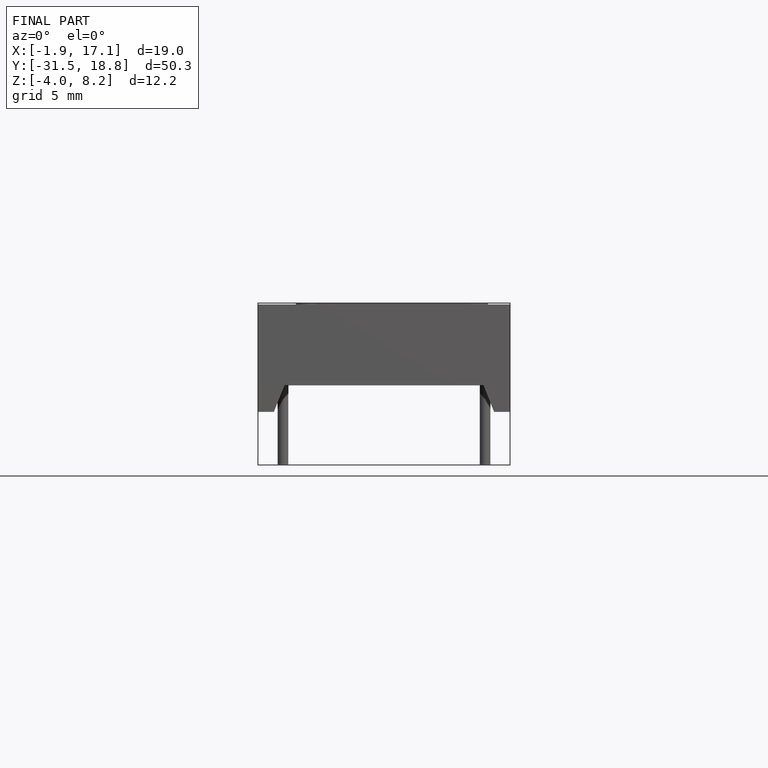
[diagram: finished part — front view with bounding-box wireframe]
